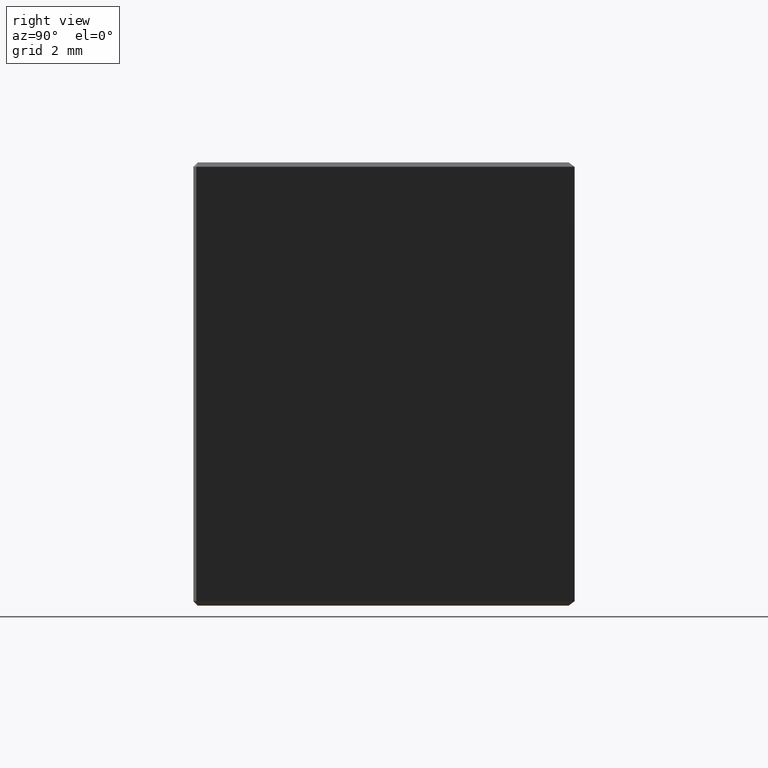
[diagram: clean part render]
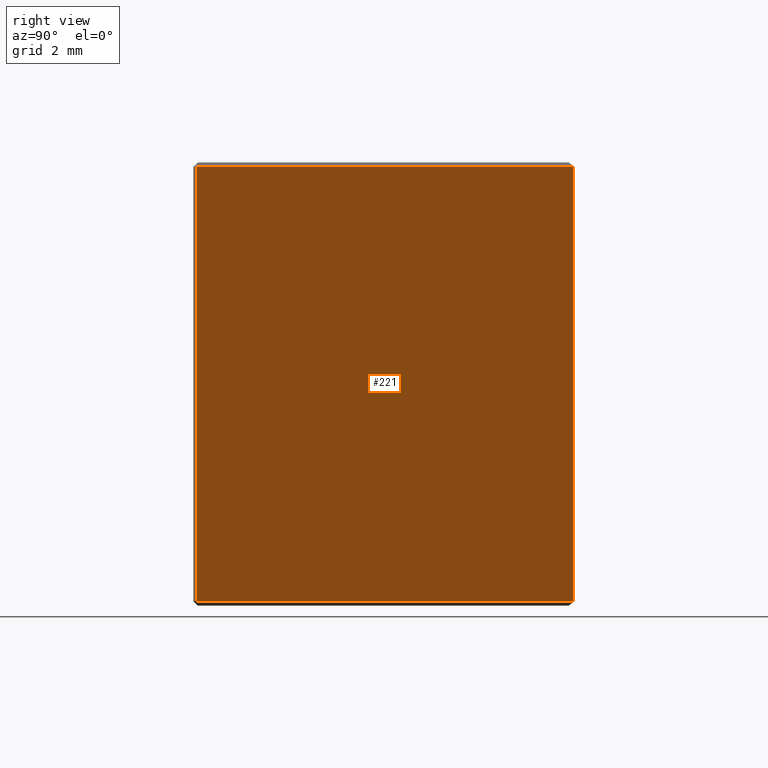
[diagram: same view with one face highlighted and labeled with its STEP entity id]
A machine part, right view. The second image highlights one B-rep face of the part: STEP entity #221.
In plain terms, the highlighted planar face has unit normal (-0.866, -0.5, 0).
Its self-contained STEP definition (entity closure, byte-faithful):
#10 = DIRECTION ( 'NONE',  ( 0.000000000000000000, 0.000000000000000000, -1.000000000000000000 ) ) ;
#31 = CARTESIAN_POINT ( 'NONE',  ( 5.000000000000000000, -8.660254037844387298, 0.09999999999999939493 ) ) ;
#52 = VECTOR ( 'NONE', #456, 999.9999999999998863 ) ;
#77 = DIRECTION ( 'NONE',  ( 0.5000000000000000000, -0.8660254037844385966, 0.000000000000000000 ) ) ;
#79 = CARTESIAN_POINT ( 'NONE',  ( 0.05000000000000062034, -0.08660254037844491992, 0.09999999999999903411 ) ) ;
#94 = EDGE_CURVE ( 'NONE', #447, #150, #334, .T. ) ;
#95 = LINE ( 'NONE', #31, #306 ) ;
#109 = AXIS2_PLACEMENT_3D ( 'NONE', #195, #231, #77 ) ;
#115 = ORIENTED_EDGE ( 'NONE', *, *, #375, .T. ) ;
#131 = CARTESIAN_POINT ( 'NONE',  ( 4.963397459621555541, -8.596856578222828560, 0.09999999999999903411 ) ) ;
#144 = CARTESIAN_POINT ( 'NONE',  ( 0.05000000000000056483, -0.08660254037844497543, 10.00000000000000000 ) ) ;
#150 = VERTEX_POINT ( 'NONE', #458 ) ;
#151 = ORIENTED_EDGE ( 'NONE', *, *, #174, .T. ) ;
#165 = VECTOR ( 'NONE', #173, 1000.000000000000000 ) ;
#173 = DIRECTION ( 'NONE',  ( 0.000000000000000000, 0.000000000000000000, 1.000000000000000000 ) ) ;
#174 = EDGE_CURVE ( 'NONE', #309, #447, #339, .T. ) ;
#195 = CARTESIAN_POINT ( 'NONE',  ( 5.000000000000000000, -8.660254037844387298, 10.00000000000000000 ) ) ;
#221 = ADVANCED_FACE ( 'NONE', ( #386 ), #424, .F. ) ;
#231 = DIRECTION ( 'NONE',  ( -0.8660254037844387076, -0.5000000000000001110, 0.000000000000000000 ) ) ;
#253 = CARTESIAN_POINT ( 'NONE',  ( 0.05000000000000062728, -0.08660254037844491992, 9.899999999999998579 ) ) ;
#277 = CARTESIAN_POINT ( 'NONE',  ( 4.963397459621555541, -8.596856578222828560, 10.00000000000000000 ) ) ;
#288 = EDGE_CURVE ( 'NONE', #150, #430, #437, .T. ) ;
#301 = CARTESIAN_POINT ( 'NONE',  ( 5.000000000000000000, -8.660254037844387298, 9.899999999999998579 ) ) ;
#306 = VECTOR ( 'NONE', #487, 999.9999999999998863 ) ;
#309 = VERTEX_POINT ( 'NONE', #79 ) ;
#311 = ORIENTED_EDGE ( 'NONE', *, *, #94, .T. ) ;
#334 = LINE ( 'NONE', #301, #52 ) ;
#339 = LINE ( 'NONE', #144, #165 ) ;
#343 = EDGE_LOOP ( 'NONE', ( #151, #311, #469, #115 ) ) ;
#375 = EDGE_CURVE ( 'NONE', #430, #309, #95, .T. ) ;
#386 = FACE_OUTER_BOUND ( 'NONE', #343, .T. ) ;
#424 = PLANE ( 'NONE',  #109 ) ;
#430 = VERTEX_POINT ( 'NONE', #131 ) ;
#437 = LINE ( 'NONE', #277, #440 ) ;
#440 = VECTOR ( 'NONE', #10, 1000.000000000000000 ) ;
#447 = VERTEX_POINT ( 'NONE', #253 ) ;
#456 = DIRECTION ( 'NONE',  ( 0.5000000000000001110, -0.8660254037844387076, -0.000000000000000000 ) ) ;
#458 = CARTESIAN_POINT ( 'NONE',  ( 4.963397459621555541, -8.596856578222828560, 9.899999999999998579 ) ) ;
#469 = ORIENTED_EDGE ( 'NONE', *, *, #288, .T. ) ;
#487 = DIRECTION ( 'NONE',  ( -0.5000000000000001110, 0.8660254037844387076, 0.000000000000000000 ) ) ;